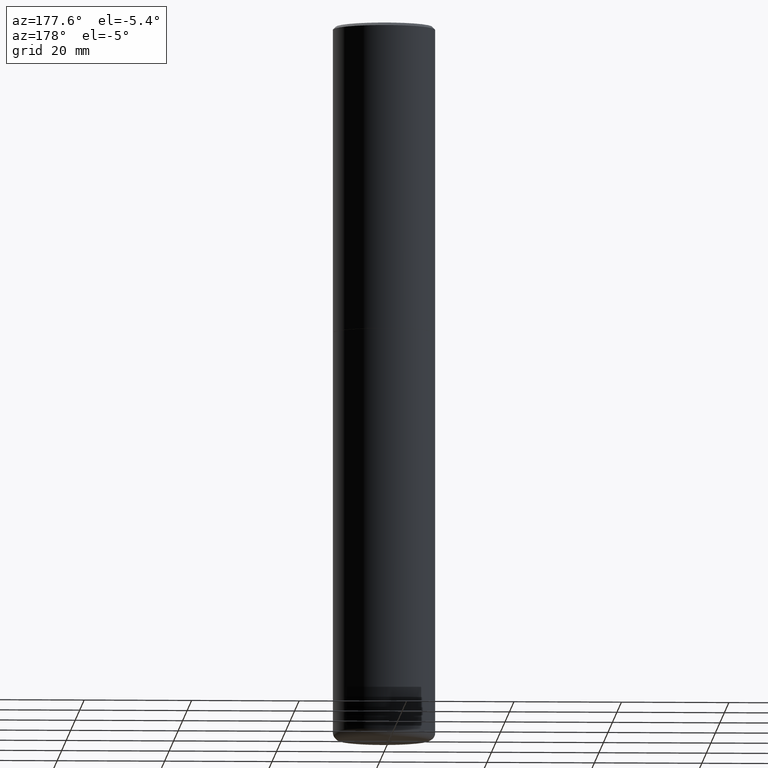
[diagram: clean part render]
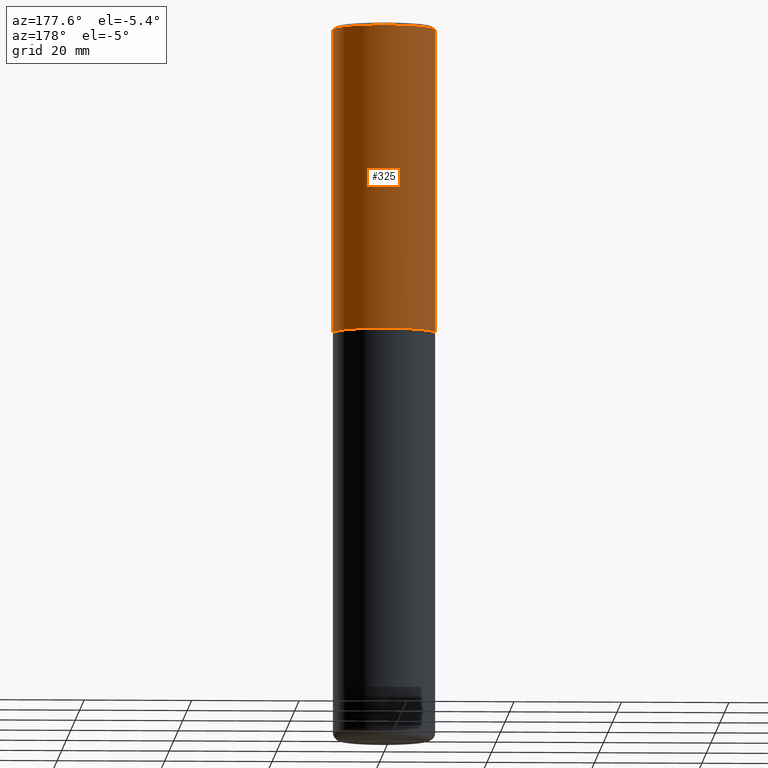
[diagram: same view with one face highlighted and labeled with its STEP entity id]
A machine part, auxiliary view. The second image highlights one B-rep face of the part: STEP entity #325.
In plain terms, the highlighted cylindrical surface (partial cylindrical patch) has radius 9.525 mm, axis along (-0, 0, 1).
Its self-contained STEP definition (entity closure, byte-faithful):
#6 = CARTESIAN_POINT ( 'NONE',  ( 0.000000000000000000, 0.000000000000000000, 0.000000000000000000 ) ) ;
#9 = DIRECTION ( 'NONE',  ( -2.445468806185136597E-29, 3.491481338843145583E-15, 1.000000000000000000 ) ) ;
#43 = CARTESIAN_POINT ( 'NONE',  ( 4.890937612370294178E-31, -6.982962677686321191E-17, -0.02000000000000008715 ) ) ;
#65 = CARTESIAN_POINT ( 'NONE',  ( -0.3750000000000001665, 2.664535259100376880E-15, -1.844600658845590439E-29 ) ) ;
#66 = EDGE_CURVE ( 'NONE', #356, #100, #374, .T. ) ;
#94 = DIRECTION ( 'NONE',  ( -2.445468806185136877E-29, 3.491481338843145188E-15, 1.000000000000000000 ) ) ;
#100 = VERTEX_POINT ( 'NONE', #107 ) ;
#107 = CARTESIAN_POINT ( 'NONE',  ( -0.3750000000000002776, -1.296550319817168545E-15, -2.249000000000000110 ) ) ;
#110 = EDGE_CURVE ( 'NONE', #234, #321, #230, .T. ) ;
#135 = VECTOR ( 'NONE', #94, 39.37007874015748143 ) ;
#136 = ORIENTED_EDGE ( 'NONE', *, *, #407, .F. ) ;
#138 = CARTESIAN_POINT ( 'NONE',  ( -0.3750000000000000555, 2.548781377355486718E-15, -0.02000000000000008715 ) ) ;
#140 = CARTESIAN_POINT ( 'NONE',  ( 0.3750000000000002776, -1.047095253519058704E-14, -2.249000000000000110 ) ) ;
#152 = DIRECTION ( 'NONE',  ( -2.445468806185136597E-29, 3.491481338843145583E-15, 1.000000000000000000 ) ) ;
#166 = EDGE_LOOP ( 'NONE', ( #416, #193, #324, #136 ) ) ;
#187 = CARTESIAN_POINT ( 'NONE',  ( 0.3750000000000000555, -2.642516375941188029E-15, -0.02000000000000008715 ) ) ;
#193 = ORIENTED_EDGE ( 'NONE', *, *, #340, .T. ) ;
#213 = AXIS2_PLACEMENT_3D ( 'NONE', #6, #9, #298 ) ;
#220 = AXIS2_PLACEMENT_3D ( 'NONE', #400, #152, #394 ) ;
#223 = FACE_OUTER_BOUND ( 'NONE', #166, .T. ) ;
#230 = CIRCLE ( 'NONE', #412, 0.3750000000000000555 ) ;
#234 = VERTEX_POINT ( 'NONE', #187 ) ;
#266 = CARTESIAN_POINT ( 'NONE',  ( 0.3750000000000001665, -2.618611004132351200E-15, 1.828566290923476763E-29 ) ) ;
#298 = DIRECTION ( 'NONE',  ( 1.000000000000000000, -6.982962677686266711E-15, 4.876176775795935793E-29 ) ) ;
#302 = DIRECTION ( 'NONE',  ( -2.445468806185136597E-29, 3.491481338843145583E-15, 1.000000000000000000 ) ) ;
#319 = DIRECTION ( 'NONE',  ( 1.000000000000000000, -6.982962677686265922E-15, 0.000000000000000000 ) ) ;
#321 = VERTEX_POINT ( 'NONE', #138 ) ;
#324 = ORIENTED_EDGE ( 'NONE', *, *, #110, .F. ) ;
#325 = ADVANCED_FACE ( 'NONE', ( #223 ), #364, .T. ) ;
#340 = EDGE_CURVE ( 'NONE', #100, #321, #352, .T. ) ;
#352 = LINE ( 'NONE', #65, #135 ) ;
#356 = VERTEX_POINT ( 'NONE', #140 ) ;
#359 = LINE ( 'NONE', #266, #417 ) ;
#364 = CYLINDRICAL_SURFACE ( 'NONE', #213, 0.3750000000000001665 ) ;
#374 = CIRCLE ( 'NONE', #220, 0.3750000000000002776 ) ;
#392 = DIRECTION ( 'NONE',  ( -2.445468806185136877E-29, 3.491481338843145188E-15, 1.000000000000000000 ) ) ;
#394 = DIRECTION ( 'NONE',  ( 1.000000000000000000, -6.982962677686267499E-15, 0.000000000000000000 ) ) ;
#400 = CARTESIAN_POINT ( 'NONE',  ( 5.499859345110371740E-29, -7.852341531058233864E-15, -2.249000000000000110 ) ) ;
#407 = EDGE_CURVE ( 'NONE', #356, #234, #359, .T. ) ;
#412 = AXIS2_PLACEMENT_3D ( 'NONE', #43, #302, #319 ) ;
#416 = ORIENTED_EDGE ( 'NONE', *, *, #66, .T. ) ;
#417 = VECTOR ( 'NONE', #392, 39.37007874015748143 ) ;